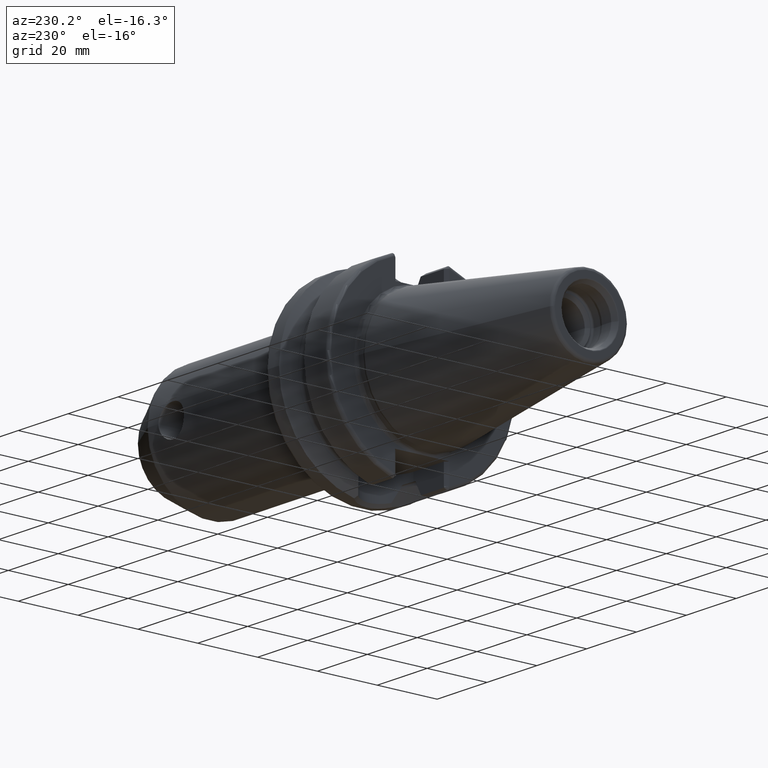
[diagram: clean part render]
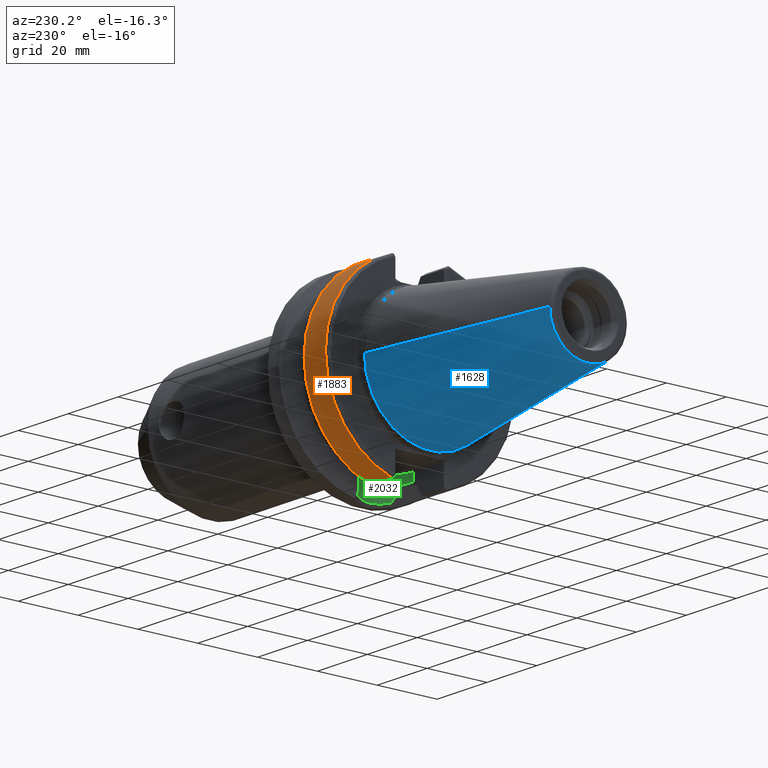
[diagram: same view with three faces highlighted in distinct colors, each labeled with its STEP entity id]
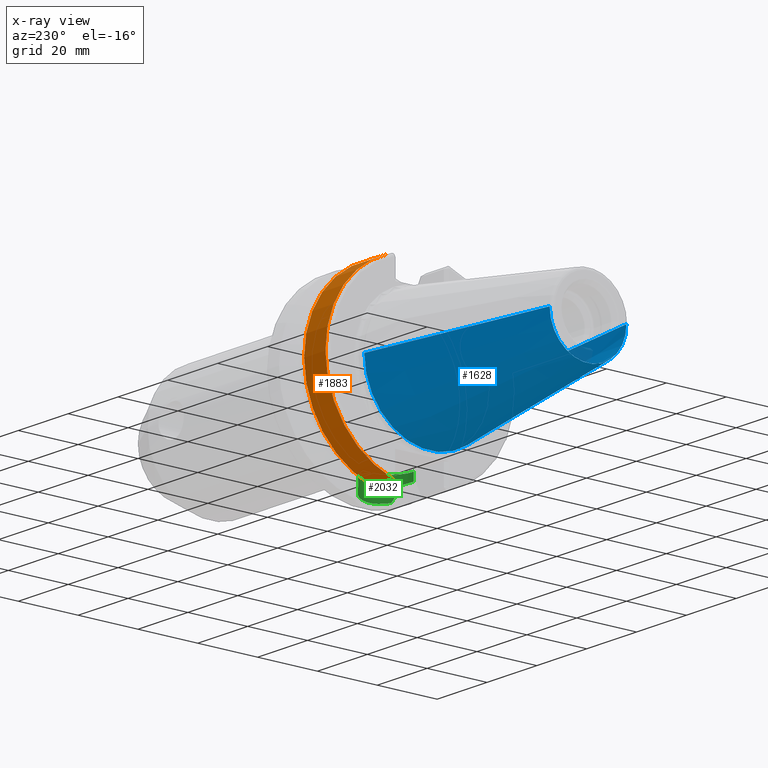
[diagram: x-ray of the same camera — body ghosted, the three highlighted faces saturated]
A machine part, auxiliary view with three faces highlighted in distinct colors.
The next image is the same camera in x-ray (body ghosted, the three faces saturated) — at least one of them is partly hidden behind the body in this view.
Their STEP definitions:

[orange] entity #1883 — the highlighted cylindrical surface (partial cylindrical patch) has radius 31.4875 mm, axis along (1, 0, 0).
#228=CARTESIAN_POINT('',(3.E0,0.E0,0.E0));
#229=DIRECTION('',(-1.E0,0.E0,0.E0));
#230=DIRECTION('',(0.E0,2.983189831898E-1,9.544662300305E-1));
#231=AXIS2_PLACEMENT_3D('',#228,#229,#230);
#233=DIRECTION('',(-9.999999999998E-1,-3.572441515959E-7,-4.802508939409E-7));
#234=VECTOR('',#233,8.572722533299E0);
#235=CARTESIAN_POINT('',(1.157272253103E1,9.052779463114E0,-3.015808084481E1));
#236=LINE('',#235,#234);
#237=CARTESIAN_POINT('',(1.157272253103E1,0.E0,0.E0));
#238=DIRECTION('',(1.E0,0.E0,0.E0));
#239=DIRECTION('',(0.E0,2.875039130802E-1,-9.577794631143E-1));
#240=AXIS2_PLACEMENT_3D('',#237,#238,#239);
#242=DIRECTION('',(9.999999999911E-1,2.496639373931E-6,-3.395432034657E-6));
#243=VECTOR('',#242,8.572722551500E0);
#244=CARTESIAN_POINT('',(2.999999979607E0,9.393297580193E0,3.005378452618E1));
#245=LINE('',#244,#243);
#576=CARTESIAN_POINT('',(2.999999997734E0,9.052776400559E0,-3.015808496187E1));
#1470=CARTESIAN_POINT('',(1.157272253103E1,9.052779463114E0,-3.015808084481E1));
#1471=CARTESIAN_POINT('',(1.157272253103E1,9.393318983190E0,3.005375541808E1));
#1472=VERTEX_POINT('',#1470);
#1473=VERTEX_POINT('',#1471);
#1485=CARTESIAN_POINT('',(3.E0,9.393347656107E0,3.005374645633E1));
#1487=VERTEX_POINT('',#1485);
#1502=VERTEX_POINT('',#576);
#1869=CARTESIAN_POINT('',(-7.002E1,0.E0,0.E0));
#1870=DIRECTION('',(1.E0,0.E0,0.E0));
#1871=DIRECTION('',(0.E0,-1.E0,0.E0));
#1872=AXIS2_PLACEMENT_3D('',#1869,#1870,#1871);
#1873=CYLINDRICAL_SURFACE('',#1872,3.14875E1);
#1875=ORIENTED_EDGE('',*,*,#1874,.T.);
#1877=ORIENTED_EDGE('',*,*,#1876,.F.);
#1878=ORIENTED_EDGE('',*,*,#1822,.T.);
#1880=ORIENTED_EDGE('',*,*,#1879,.F.);
#1881=EDGE_LOOP('',(#1875,#1877,#1878,#1880));
#1882=FACE_OUTER_BOUND('',#1881,.F.);
#1883=ADVANCED_FACE('',(#1882),#1873,.T.);
#232=CIRCLE('',#231,3.14875E1);
#241=CIRCLE('',#240,3.14875E1);
#1822=EDGE_CURVE('',#1472,#1473,#241,.T.);
#1874=EDGE_CURVE('',#1487,#1502,#232,.T.);
#1876=EDGE_CURVE('',#1472,#1502,#236,.T.);
#1879=EDGE_CURVE('',#1487,#1473,#245,.T.);

[blue] entity #1628 — the highlighted conical surface has half-angle 8.298 deg.
#32=CARTESIAN_POINT('',(-6.454431866917E1,0.E0,0.E0));
#33=DIRECTION('',(-1.E0,0.E0,0.E0));
#34=DIRECTION('',(0.E0,1.E0,0.E0));
#35=AXIS2_PLACEMENT_3D('',#32,#33,#34);
#47=DIRECTION('',(-9.895312636440E-1,-1.443186691705E-1,0.E0));
#48=VECTOR('',#47,6.394703124850E1);
#49=CARTESIAN_POINT('',(-1.266732031557E0,2.204025284980E1,0.E0));
#50=LINE('',#49,#48);
#51=DIRECTION('',(-9.895312636440E-1,1.443186691705E-1,0.E0));
#52=VECTOR('',#51,6.394703124850E1);
#53=CARTESIAN_POINT('',(-1.266732031557E0,-2.204025284980E1,0.E0));
#54=LINE('',#53,#52);
#55=CARTESIAN_POINT('',(-1.266732031557E0,0.E0,0.E0));
#56=DIRECTION('',(-1.E0,0.E0,0.E0));
#57=DIRECTION('',(0.E0,1.E0,0.E0));
#58=AXIS2_PLACEMENT_3D('',#55,#56,#57);
#1296=CARTESIAN_POINT('',(-6.454431866917E1,1.281150240261E1,0.E0));
#1298=VERTEX_POINT('',#1296);
#1300=CARTESIAN_POINT('',(-6.454431866917E1,-1.281150240261E1,0.E0));
#1302=VERTEX_POINT('',#1300);
#1515=CARTESIAN_POINT('',(-1.266732031557E0,2.204025284980E1,0.E0));
#1516=VERTEX_POINT('',#1515);
#1517=CARTESIAN_POINT('',(-1.266732031557E0,-2.204025284980E1,0.E0));
#1518=VERTEX_POINT('',#1517);
#1616=CARTESIAN_POINT('',(-3.290552535036E1,0.E0,0.E0));
#1617=DIRECTION('',(1.E0,0.E0,0.E0));
#1618=DIRECTION('',(0.E0,-1.E0,0.E0));
#1619=AXIS2_PLACEMENT_3D('',#1616,#1617,#1618);
#1620=CONICAL_SURFACE('',#1619,1.742587762621E1,8.297826828206E0);
#1621=ORIENTED_EDGE('',*,*,#1606,.T.);
#1622=ORIENTED_EDGE('',*,*,#1583,.T.);
#1623=ORIENTED_EDGE('',*,*,#1610,.F.);
#1625=ORIENTED_EDGE('',*,*,#1624,.F.);
#1626=EDGE_LOOP('',(#1621,#1622,#1623,#1625));
#1627=FACE_OUTER_BOUND('',#1626,.F.);
#1628=ADVANCED_FACE('',(#1627),#1620,.T.);
#36=CIRCLE('',#35,1.281150240261E1);
#59=CIRCLE('',#58,2.204025284980E1);
#1583=EDGE_CURVE('',#1298,#1302,#36,.T.);
#1606=EDGE_CURVE('',#1516,#1298,#50,.T.);
#1610=EDGE_CURVE('',#1518,#1302,#54,.T.);
#1624=EDGE_CURVE('',#1516,#1518,#59,.T.);

[green] entity #2032 — the highlighted cylindrical surface (edge-blend (fillet) strip) has radius 8.095 mm, axis along (0, 0, 1).
#181=DIRECTION('',(0.E0,0.E0,-1.E0));
#182=VECTOR('',#181,2.652023822792E0);
#183=CARTESIAN_POINT('',(1.5155E1,8.095E0,-2.245E1));
#184=LINE('',#183,#182);
#353=CARTESIAN_POINT('',(1.5155E1,8.095E0,-2.510202382279E1));
#354=CARTESIAN_POINT('',(1.552274115811E1,8.095E0,-2.510202382279E1));
#355=CARTESIAN_POINT('',(1.625266243215E1,8.045449937199E0,-2.511808739773E1));
#356=CARTESIAN_POINT('',(1.734035783533E1,7.820815510938E0,-2.518941465745E1));
#357=CARTESIAN_POINT('',(1.804170386658E1,7.572200800424E0,-2.526513476705E1));
#358=CARTESIAN_POINT('',(1.83875E1,7.421588020768E0,-2.530929979770E1));
#367=CARTESIAN_POINT('',(1.83875E1,-7.421588020768E0,-2.530929979770E1));
#368=CARTESIAN_POINT('',(1.804170386611E1,-7.572200800631E0,-2.526513476699E1));
#369=CARTESIAN_POINT('',(1.734035783411E1,-7.820815511030E0,-2.518941465742E1));
#370=CARTESIAN_POINT('',(1.625266243851E1,-8.045449936191E0,-2.511808739805E1));
#371=CARTESIAN_POINT('',(1.552274116086E1,-8.095E0,-2.510202382279E1));
#372=CARTESIAN_POINT('',(1.5155E1,-8.095E0,-2.510202382279E1));
#386=DIRECTION('',(0.E0,-5.138287856919E-14,1.E0));
#387=VECTOR('',#386,5.185648086088E-2);
#388=CARTESIAN_POINT('',(1.91375E1,-7.047603759435E0,-2.624530807186E1));
#389=LINE('',#388,#387);
#390=CARTESIAN_POINT('',(2.105861410330E1,-5.538624876202E0,-2.999548227013E1));
#391=CARTESIAN_POINT('',(2.093797596673E1,-5.667212931971E0,-2.975925502394E1));
#392=CARTESIAN_POINT('',(2.069265782077E1,-5.911926204526E0,-2.927912632192E1));
#393=CARTESIAN_POINT('',(2.031281915354E1,-6.245686951976E0,-2.853656269645E1));
#394=CARTESIAN_POINT('',(1.992518154069E1,-6.546159346979E0,-2.777970817700E1));
#395=CARTESIAN_POINT('',(1.953227047098E1,-6.814802578335E0,-2.701362543231E1));
#396=CARTESIAN_POINT('',(1.926930512179E1,-6.973122571862E0,-2.650168908776E1));
#397=CARTESIAN_POINT('',(1.91375E1,-7.047603759435E0,-2.624530807186E1));
#399=CARTESIAN_POINT('',(2.105861410330E1,-5.538624876202E0,-2.999548227013E1));
#400=CARTESIAN_POINT('',(2.118582632194E1,-5.403035030691E0,-3.001940255663E1));
#401=CARTESIAN_POINT('',(2.162492750073E1,-4.901348801114E0,-3.010480758191E1));
#402=CARTESIAN_POINT('',(2.226286577386E1,-3.959141053300E0,-3.024332364521E1));
#403=CARTESIAN_POINT('',(2.283624732779E1,-2.678045624697E0,-3.038109570299E1));
#404=CARTESIAN_POINT('',(2.317820212407E1,-1.337015438449E0,-3.046857541647E1));
#405=CARTESIAN_POINT('',(2.328849050350E1,3.161521998765E-2,-3.049763993087E1));
#406=CARTESIAN_POINT('',(2.316746512121E1,1.400327095984E0,-3.046576792407E1));
#407=CARTESIAN_POINT('',(2.281459155064E1,2.739516256176E0,-3.037568889831E1));
#408=CARTESIAN_POINT('',(2.223048246529E1,4.016867488334E0,-3.023587686159E1));
#409=CARTESIAN_POINT('',(2.159689403427E1,4.936294232451E0,-3.009909584392E1));
#410=CARTESIAN_POINT('',(2.117043535579E1,5.419444305002E0,-3.001651184455E1));
#411=CARTESIAN_POINT('',(2.105861623912E1,5.538622599637E0,-2.999548645237E1));
#413=CARTESIAN_POINT('',(1.91375E1,7.047603759435E0,-2.624530807186E1));
#414=CARTESIAN_POINT('',(1.926924659829E1,6.973155642658E0,-2.650157525064E1));
#415=CARTESIAN_POINT('',(1.953215093318E1,6.814880472402E0,-2.701339248784E1));
#416=CARTESIAN_POINT('',(1.992520758926E1,6.546145713789E0,-2.777975883833E1));
#417=CARTESIAN_POINT('',(2.031299763175E1,6.245544639533E0,-2.853691128968E1));
#418=CARTESIAN_POINT('',(2.069290284024E1,5.911695129812E0,-2.927960564408E1));
#419=CARTESIAN_POINT('',(2.093808029853E1,5.667101824111E0,-2.975945931955E1));
#420=CARTESIAN_POINT('',(2.105861623912E1,5.538622599637E0,-2.999548645237E1));
#422=DIRECTION('',(0.E0,2.055315142766E-13,1.E0));
#423=VECTOR('',#422,5.185648086092E-2);
#424=CARTESIAN_POINT('',(1.91375E1,7.047603759435E0,-2.624530807186E1));
#425=LINE('',#424,#423);
#426=CARTESIAN_POINT('',(1.83875E1,7.421588020768E0,-2.530929979770E1));
#427=CARTESIAN_POINT('',(1.845215642376E1,7.393426677236E0,-2.531755770651E1));
#428=CARTESIAN_POINT('',(1.857872916820E1,7.336410466726E0,-2.535018075128E1));
#429=CARTESIAN_POINT('',(1.877499389890E1,7.241428280265E0,-2.546209548146E1));
#430=CARTESIAN_POINT('',(1.893129669655E1,7.160762150281E0,-2.561408219456E1));
#431=CARTESIAN_POINT('',(1.905138585928E1,7.095863125167E0,-2.579909751285E1));
#432=CARTESIAN_POINT('',(1.912324356271E1,7.055692563985E0,-2.600243680224E1));
#433=CARTESIAN_POINT('',(1.91375E1,7.047603759435E0,-2.612998725804E1));
#434=CARTESIAN_POINT('',(1.91375E1,7.047603759435E0,-2.619345159100E1));
#436=DIRECTION('',(0.E0,0.E0,-1.E0));
#437=VECTOR('',#436,2.652023822792E0);
#438=CARTESIAN_POINT('',(1.5155E1,-8.095E0,-2.245E1));
#439=LINE('',#438,#437);
#440=CARTESIAN_POINT('',(1.91375E1,-7.047603759435E0,-2.619345159100E1));
#441=CARTESIAN_POINT('',(1.91375E1,-7.047603759435E0,-2.612998725804E1));
#442=CARTESIAN_POINT('',(1.912324356271E1,-7.055692563985E0,-2.600243680224E1));
#443=CARTESIAN_POINT('',(1.905138585928E1,-7.095863125167E0,-2.579909751285E1));
#444=CARTESIAN_POINT('',(1.893129669655E1,-7.160762150281E0,-2.561408219456E1));
#445=CARTESIAN_POINT('',(1.877499389890E1,-7.241428280265E0,-2.546209548146E1));
#446=CARTESIAN_POINT('',(1.857872916820E1,-7.336410466726E0,-2.535018075128E1));
#447=CARTESIAN_POINT('',(1.845215642376E1,-7.393426677236E0,-2.531755770651E1));
#448=CARTESIAN_POINT('',(1.83875E1,-7.421588020768E0,-2.530929979770E1));
#758=CARTESIAN_POINT('',(1.5155E1,0.E0,-2.245E1));
#759=DIRECTION('',(0.E0,0.E0,1.E0));
#760=DIRECTION('',(0.E0,-1.E0,0.E0));
#761=AXIS2_PLACEMENT_3D('',#758,#759,#760);
#1321=CARTESIAN_POINT('',(1.91375E1,-7.047603759435E0,-2.619345159100E1));
#1323=VERTEX_POINT('',#1321);
#1324=CARTESIAN_POINT('',(1.83875E1,-7.421588020768E0,-2.530929979770E1));
#1326=VERTEX_POINT('',#1324);
#1329=CARTESIAN_POINT('',(1.83875E1,7.421588020768E0,-2.530929979770E1));
#1331=VERTEX_POINT('',#1329);
#1332=CARTESIAN_POINT('',(1.91375E1,7.047603759435E0,-2.619345159100E1));
#1334=VERTEX_POINT('',#1332);
#1337=CARTESIAN_POINT('',(1.91375E1,7.047603759435E0,-2.624530807186E1));
#1339=VERTEX_POINT('',#1337);
#1340=CARTESIAN_POINT('',(1.91375E1,-7.047603759435E0,-2.624530807186E1));
#1342=VERTEX_POINT('',#1340);
#1442=CARTESIAN_POINT('',(1.5155E1,-8.095E0,-2.245E1));
#1443=CARTESIAN_POINT('',(1.5155E1,8.095E0,-2.245E1));
#1444=VERTEX_POINT('',#1442);
#1445=VERTEX_POINT('',#1443);
#1458=CARTESIAN_POINT('',(1.5155E1,8.095E0,-2.510202382279E1));
#1459=VERTEX_POINT('',#1458);
#1461=CARTESIAN_POINT('',(1.5155E1,-8.095E0,-2.510202382279E1));
#1462=VERTEX_POINT('',#1461);
#1464=VERTEX_POINT('',#390);
#1465=VERTEX_POINT('',#420);
#2005=CARTESIAN_POINT('',(1.5155E1,0.E0,-2.245E1));
#2006=DIRECTION('',(0.E0,0.E0,1.E0));
#2007=DIRECTION('',(1.E0,0.E0,0.E0));
#2008=AXIS2_PLACEMENT_3D('',#2005,#2006,#2007);
#2009=CYLINDRICAL_SURFACE('',#2008,8.095E0);
#2011=ORIENTED_EDGE('',*,*,#2010,.F.);
#2013=ORIENTED_EDGE('',*,*,#2012,.F.);
#2015=ORIENTED_EDGE('',*,*,#2014,.T.);
#2017=ORIENTED_EDGE('',*,*,#2016,.F.);
#2019=ORIENTED_EDGE('',*,*,#2018,.T.);
#2021=ORIENTED_EDGE('',*,*,#2020,.F.);
#2022=ORIENTED_EDGE('',*,*,#1976,.F.);
#2023=ORIENTED_EDGE('',*,*,#1777,.F.);
#2025=ORIENTED_EDGE('',*,*,#2024,.F.);
#2026=ORIENTED_EDGE('',*,*,#1928,.T.);
#2027=ORIENTED_EDGE('',*,*,#1992,.F.);
#2029=ORIENTED_EDGE('',*,*,#2028,.F.);
#2030=EDGE_LOOP('',(#2011,#2013,#2015,#2017,#2019,#2021,#2022,#2023,#2025,#2026,
#2027,#2029));
#2031=FACE_OUTER_BOUND('',#2030,.F.);
#2032=ADVANCED_FACE('',(#2031),#2009,.F.);
#359=B_SPLINE_CURVE_WITH_KNOTS('',3,(#353,#354,#355,#356,#357,#358),
.UNSPECIFIED.,.F.,.F.,(4,1,1,4),(0.E0,3.333333333333E-1,6.666666666667E-1,1.E0),
.UNSPECIFIED.);
#373=B_SPLINE_CURVE_WITH_KNOTS('',3,(#367,#368,#369,#370,#371,#372),
.UNSPECIFIED.,.F.,.F.,(4,1,1,4),(0.E0,3.333333333333E-1,6.666666666667E-1,1.E0),
.UNSPECIFIED.);
#398=B_SPLINE_CURVE_WITH_KNOTS('',3,(#390,#391,#392,#393,#394,#395,#396,#397),
.UNSPECIFIED.,.F.,.F.,(4,1,1,1,1,4),(0.E0,2.E-1,4.E-1,6.E-1,8.E-1,1.E0),
.UNSPECIFIED.);
#412=B_SPLINE_CURVE_WITH_KNOTS('',3,(#399,#400,#401,#402,#403,#404,#405,#406,
#407,#408,#409,#410,#411),.UNSPECIFIED.,.F.,.F.,(4,1,1,1,1,1,1,1,1,1,4),(0.E0,
4.417735347938E-2,1.588015462627E-1,2.734257390460E-1,3.880499318293E-1,
5.026741246127E-1,6.172983173960E-1,7.319225101793E-1,8.465467029626E-1,
9.611708957459E-1,1.E0),.UNSPECIFIED.);
#421=B_SPLINE_CURVE_WITH_KNOTS('',3,(#413,#414,#415,#416,#417,#418,#419,#420),
.UNSPECIFIED.,.F.,.F.,(4,1,1,1,1,4),(0.E0,2.E-1,4.E-1,6.E-1,8.E-1,1.E0),
.UNSPECIFIED.);
#435=B_SPLINE_CURVE_WITH_KNOTS('',3,(#426,#427,#428,#429,#430,#431,#432,#433,
#434),.UNSPECIFIED.,.F.,.F.,(4,1,1,1,1,1,4),(0.E0,1.666666666667E-1,
3.333333333333E-1,5.E-1,6.666666666667E-1,8.333333333333E-1,1.E0),
.UNSPECIFIED.);
#449=B_SPLINE_CURVE_WITH_KNOTS('',3,(#440,#441,#442,#443,#444,#445,#446,#447,
#448),.UNSPECIFIED.,.F.,.F.,(4,1,1,1,1,1,4),(0.E0,1.666666666667E-1,
3.333333333333E-1,5.E-1,6.666666666667E-1,8.333333333333E-1,1.E0),
.UNSPECIFIED.);
#762=CIRCLE('',#761,8.095E0);
#1777=EDGE_CURVE('',#1445,#1459,#184,.T.);
#1928=EDGE_CURVE('',#1444,#1462,#439,.T.);
#1976=EDGE_CURVE('',#1459,#1331,#359,.T.);
#1992=EDGE_CURVE('',#1326,#1462,#373,.T.);
#2010=EDGE_CURVE('',#1342,#1323,#389,.T.);
#2012=EDGE_CURVE('',#1464,#1342,#398,.T.);
#2014=EDGE_CURVE('',#1464,#1465,#412,.T.);
#2016=EDGE_CURVE('',#1339,#1465,#421,.T.);
#2018=EDGE_CURVE('',#1339,#1334,#425,.T.);
#2020=EDGE_CURVE('',#1331,#1334,#435,.T.);
#2024=EDGE_CURVE('',#1444,#1445,#762,.T.);
#2028=EDGE_CURVE('',#1323,#1326,#449,.T.);